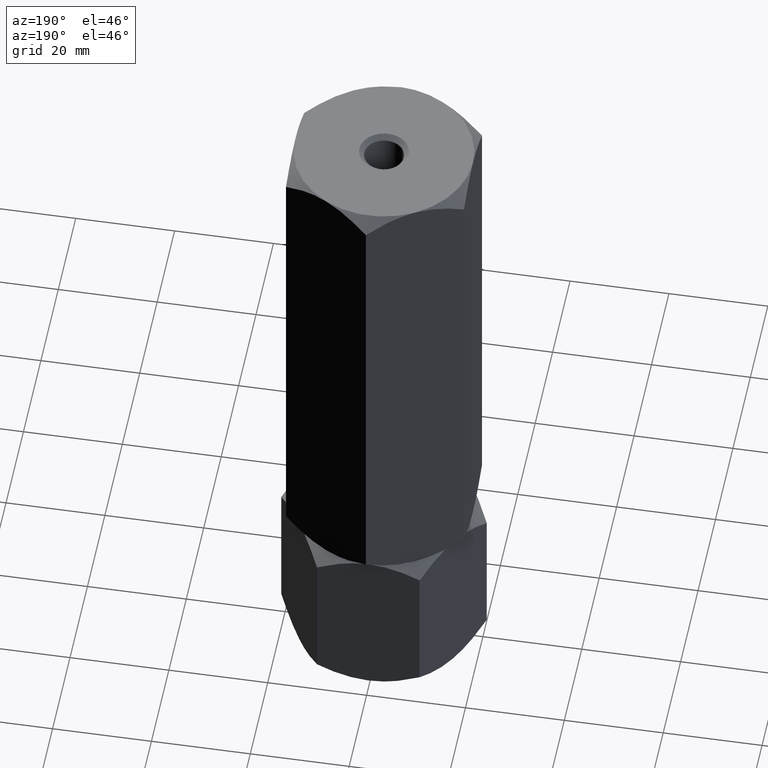
[diagram: clean part render]
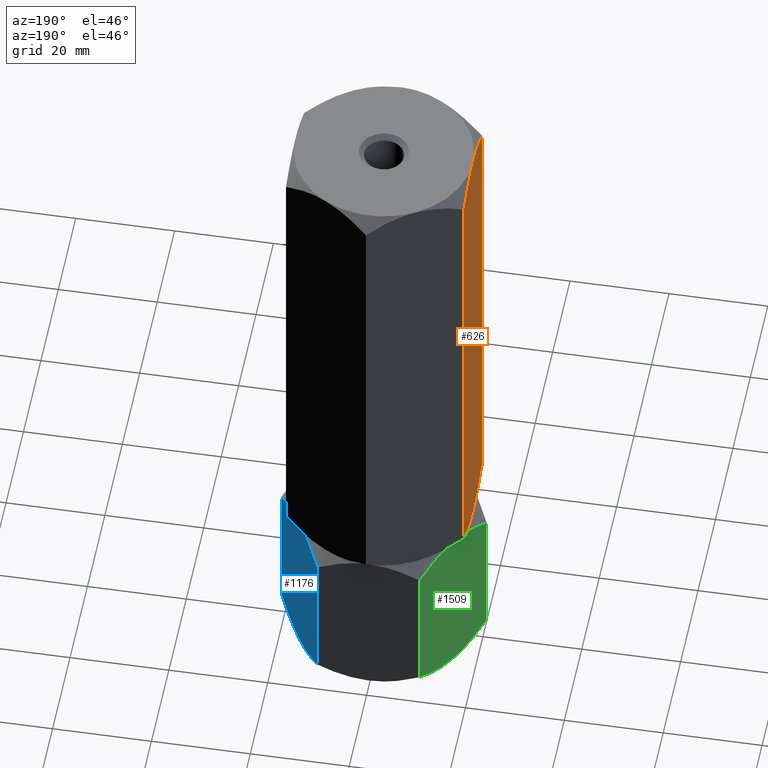
[diagram: same view with three faces highlighted in distinct colors, each labeled with its STEP entity id]
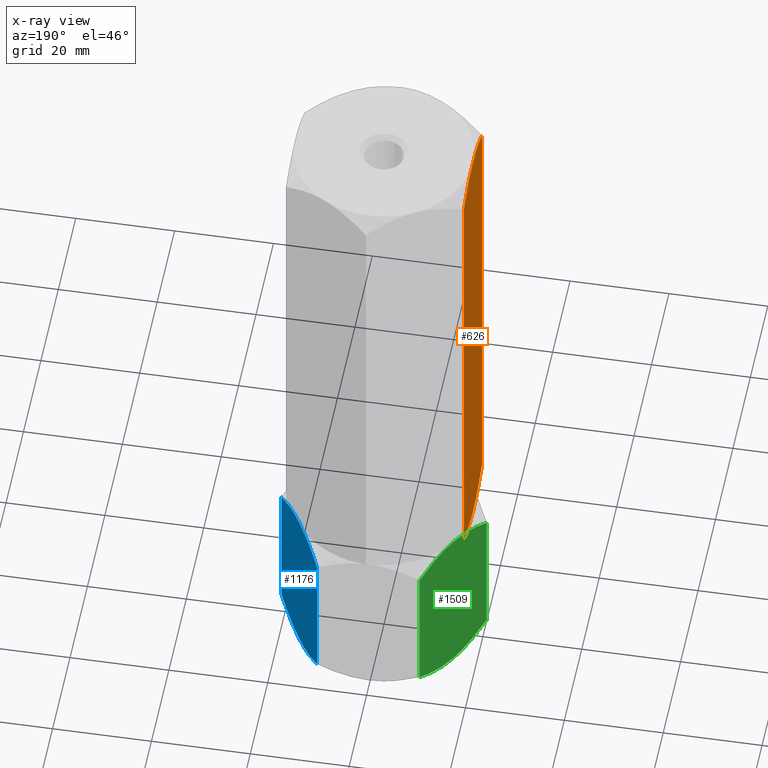
[diagram: x-ray of the same camera — body ghosted, the three highlighted faces saturated]
A machine part, auxiliary view with three faces highlighted in distinct colors.
The next image is the same camera in x-ray (body ghosted, the three faces saturated) — at least one of them is partly hidden behind the body in this view.
Their STEP definitions:

[orange] entity #626 — the highlighted planar face has unit normal (1, 0, -0).
#4 = CARTESIAN_POINT ( 'NONE',  ( -18.00000000000000711, 7.107311090567371537, 132.0542086361348879 ) ) ;
#8 = CARTESIAN_POINT ( 'NONE',  ( -18.00000000000000355, -8.769604937885725704, 131.3255090817757207 ) ) ;
#62 = ORIENTED_EDGE ( 'NONE', *, *, #1614, .F. ) ;
#83 = VERTEX_POINT ( 'NONE', #871 ) ;
#87 = B_SPLINE_CURVE_WITH_KNOTS ( 'NONE', 3,
 ( #177, #354, #4, #811, #1611, #311, #1748, #1297 ),
 .UNSPECIFIED., .F., .F.,
 ( 4, 2, 2, 4 ),
 ( 0.1278099879825815854, 0.1331388918532575572, 0.1358033437885955708, 0.1384677957239335566 ),
 .UNSPECIFIED. ) ;
#90 = EDGE_CURVE ( 'NONE', #1162, #1548, #1300, .T. ) ;
#128 = VERTEX_POINT ( 'NONE', #672 ) ;
#154 = VERTEX_POINT ( 'NONE', #537 ) ;
#173 = CARTESIAN_POINT ( 'NONE',  ( -18.00000000000000355, -7.507490410494521704, 131.8342518833695181 ) ) ;
#177 = CARTESIAN_POINT ( 'NONE',  ( -18.00000000000000355, 10.39230484541327293, 130.5487236425067863 ) ) ;
#182 = CARTESIAN_POINT ( 'NONE',  ( -18.00000000000000355, -9.589039146339997544, 130.9503564920434258 ) ) ;
#205 = CARTESIAN_POINT ( 'NONE',  ( -18.00000000000000711, -0.4513223419669447067, 33.33333333333329307 ) ) ;
#211 = CARTESIAN_POINT ( 'NONE',  ( -18.00000000000000711, -0.9043953770119721458, 33.35033129737433910 ) ) ;
#223 = CARTESIAN_POINT ( 'NONE',  ( -18.00000000000000711, -7.082707117959917476, 34.66128091149798252 ) ) ;
#229 = ORIENTED_EDGE ( 'NONE', *, *, #1102, .F. ) ;
#256 = VERTEX_POINT ( 'NONE', #1046 ) ;
#292 = EDGE_CURVE ( 'NONE', #1548, #128, #983, .T. ) ;
#301 = FACE_OUTER_BOUND ( 'NONE', #1556, .T. ) ;
#311 = CARTESIAN_POINT ( 'NONE',  ( -18.00000000000000711, 1.805664286422173692, 133.2645055555531428 ) ) ;
#320 = CARTESIAN_POINT ( 'NONE',  ( -18.00000000000000355, -10.39230484541325872, 36.11794302415981406 ) ) ;
#339 = CARTESIAN_POINT ( 'NONE',  ( -18.00000000000000000, -1.817661187389374655, 133.2474680458177829 ) ) ;
#348 = CARTESIAN_POINT ( 'NONE',  ( -18.00000000000000355, -0.9087126234396247781, 133.3161085293293411 ) ) ;
#353 = AXIS2_PLACEMENT_3D ( 'NONE', #1236, #929, #941 ) ;
#354 = CARTESIAN_POINT ( 'NONE',  ( -18.00000000000000711, 8.774731520318134415, 131.3575103050543760 ) ) ;
#360 = CARTESIAN_POINT ( 'NONE',  ( -18.00000000000000355, -3.613967831719413937, 33.67110738872835185 ) ) ;
#368 = CARTESIAN_POINT ( 'NONE',  ( -18.00000000000000711, -2.268365306453394847, 33.47027849005760913 ) ) ;
#432 = LINE ( 'NONE', #900, #1707 ) ;
#439 = PLANE ( 'NONE',  #353 ) ;
#480 = DIRECTION ( 'NONE',  ( -0.000000000000000000, -0.000000000000000000, -1.000000000000000000 ) ) ;
#503 = CARTESIAN_POINT ( 'NONE',  ( -18.00000000000000355, -4.489815314339048236, 132.8005018324903119 ) ) ;
#534 = ORIENTED_EDGE ( 'NONE', *, *, #292, .F. ) ;
#537 = CARTESIAN_POINT ( 'NONE',  ( -18.00000000000000355, 10.39230484541327293, 130.5487236425067863 ) ) ;
#626 = ADVANCED_FACE ( 'NONE', ( #301 ), #439, .F. ) ;
#633 = CARTESIAN_POINT ( 'NONE',  ( -18.00000000000000000, 0.000000000000000000, 133.3333333333333144 ) ) ;
#639 = CARTESIAN_POINT ( 'NONE',  ( -18.00000000000000355, 0.000000000000000000, 33.33333333333330017 ) ) ;
#672 = CARTESIAN_POINT ( 'NONE',  ( -18.00000000000000355, 10.39230484541327293, 36.11794302415982116 ) ) ;
#681 = CARTESIAN_POINT ( 'NONE',  ( -18.00000000000000000, -8.765915541430075564, 35.35100532987971889 ) ) ;
#693 = CARTESIAN_POINT ( 'NONE',  ( -18.00000000000000355, -10.39230484541325872, 36.11794302415981406 ) ) ;
#811 = CARTESIAN_POINT ( 'NONE',  ( -18.00000000000000355, 4.475081985729232770, 132.8044625281006006 ) ) ;
#815 = CARTESIAN_POINT ( 'NONE',  ( -18.00000000000000355, 10.39230484541327293, 36.11794302415982116 ) ) ;
#838 = CARTESIAN_POINT ( 'NONE',  ( -18.00000000000000355, 0.000000000000000000, 33.33333333333330017 ) ) ;
#862 = CARTESIAN_POINT ( 'NONE',  ( -18.00000000000000355, -8.347141026087349758, 35.17082227915909698 ) ) ;
#871 = CARTESIAN_POINT ( 'NONE',  ( -18.00000000000000000, 0.000000000000000000, 133.3333333333333144 ) ) ;
#900 = CARTESIAN_POINT ( 'NONE',  ( -18.00000000000000355, -10.39230484541325872, 133.3333333333333144 ) ) ;
#929 = DIRECTION ( 'NONE',  ( 1.000000000000000000, 0.000000000000000000, -0.000000000000000000 ) ) ;
#941 = DIRECTION ( 'NONE',  ( -0.000000000000000000, 0.000000000000000000, -1.000000000000000000 ) ) ;
#954 = CARTESIAN_POINT ( 'NONE',  ( -18.00000000000000355, 1.810443484980108986, 33.33333333333329307 ) ) ;
#966 = CARTESIAN_POINT ( 'NONE',  ( -18.00000000000000355, 0.000000000000000000, 33.33333333333330017 ) ) ;
#983 = B_SPLINE_CURVE_WITH_KNOTS ( 'NONE', 3,
 ( #966, #954, #1606, #1759, #1597, #815 ),
 .UNSPECIFIED., .F., .F.,
 ( 4, 2, 4 ),
 ( 0.1107820986329206697, 0.1159835759449454468, 0.1211850532569702238 ),
 .UNSPECIFIED. ) ;
#990 = CARTESIAN_POINT ( 'NONE',  ( -18.00000000000000711, -6.223496946123841411, 132.2920538615294390 ) ) ;
#1017 = CARTESIAN_POINT ( 'NONE',  ( -18.00000000000000355, -1.814095138421053077, 33.41883099885364317 ) ) ;
#1046 = CARTESIAN_POINT ( 'NONE',  ( -18.00000000000000711, -10.39230484541325694, 130.5487236425067863 ) ) ;
#1102 = EDGE_CURVE ( 'NONE', #83, #256, #1988, .T. ) ;
#1135 = EDGE_CURVE ( 'NONE', #154, #128, #1919, .T. ) ;
#1162 = VERTEX_POINT ( 'NONE', #320 ) ;
#1230 = DIRECTION ( 'NONE',  ( -0.000000000000000000, -0.000000000000000000, -1.000000000000000000 ) ) ;
#1236 = CARTESIAN_POINT ( 'NONE',  ( -18.00000000000000355, 10.39230484541327293, 133.3333333333333144 ) ) ;
#1270 = EDGE_CURVE ( 'NONE', #256, #1162, #432, .T. ) ;
#1274 = CARTESIAN_POINT ( 'NONE',  ( -18.00000000000001066, -3.609709903701545208, 132.9962641319732768 ) ) ;
#1297 = CARTESIAN_POINT ( 'NONE',  ( -18.00000000000000000, 0.000000000000000000, 133.3333333333333144 ) ) ;
#1300 = B_SPLINE_CURVE_WITH_KNOTS ( 'NONE', 3,
 ( #693, #1790, #1490, #681, #862, #223, #1511, #1966, #360, #368, #1017, #211, #205, #838 ),
 .UNSPECIFIED., .F., .F.,
 ( 4, 2, 2, 2, 2, 2, 4 ),
 ( 0.1004087599824664279, 0.1017054273137732029, 0.1030020946450799918, 0.1055954293076935557, 0.1081887639703071058, 0.1094854313016138947, 0.1107820986329206697 ),
 .UNSPECIFIED. ) ;
#1402 = ORIENTED_EDGE ( 'NONE', *, *, #1135, .T. ) ;
#1465 = ORIENTED_EDGE ( 'NONE', *, *, #90, .F. ) ;
#1490 = CARTESIAN_POINT ( 'NONE',  ( -18.00000000000000711, -9.587949197936595169, 35.72437761027130421 ) ) ;
#1511 = CARTESIAN_POINT ( 'NONE',  ( -18.00000000000000355, -6.228990999673021278, 34.36251136990549782 ) ) ;
#1548 = VERTEX_POINT ( 'NONE', #639 ) ;
#1556 = EDGE_LOOP ( 'NONE', ( #62, #1402, #534, #1465, #1724, #229 ) ) ;
#1597 = CARTESIAN_POINT ( 'NONE',  ( -18.00000000000000355, 8.778074610959544444, 35.31082790693295692 ) ) ;
#1600 = CARTESIAN_POINT ( 'NONE',  ( -18.00000000000000711, -2.268326247884222990, 133.1963592391387579 ) ) ;
#1606 = CARTESIAN_POINT ( 'NONE',  ( -18.00000000000000711, 3.592318780390954647, 33.61070979931490399 ) ) ;
#1608 = CARTESIAN_POINT ( 'NONE',  ( -18.00000000000000355, -0.4526418623711488953, 133.3333333333333144 ) ) ;
#1611 = CARTESIAN_POINT ( 'NONE',  ( -18.00000000000000711, 3.589319173232453863, 133.0001577798414019 ) ) ;
#1614 = EDGE_CURVE ( 'NONE', #154, #83, #87, .T. ) ;
#1707 = VECTOR ( 'NONE', #1230, 1000.000000000000000 ) ;
#1724 = ORIENTED_EDGE ( 'NONE', *, *, #1270, .F. ) ;
#1748 = CARTESIAN_POINT ( 'NONE',  ( -18.00000000000001066, 0.9067060642462314579, 133.3333333333333428 ) ) ;
#1752 = CARTESIAN_POINT ( 'NONE',  ( -17.99999999999999645, -7.080606646322093134, 131.9949414621132746 ) ) ;
#1759 = CARTESIAN_POINT ( 'NONE',  ( -18.00000000000000000, 7.109965447143206774, 34.61309850096016305 ) ) ;
#1771 = CARTESIAN_POINT ( 'NONE',  ( -18.00000000000000711, -5.792286176018565769, 132.4289044973347131 ) ) ;
#1790 = CARTESIAN_POINT ( 'NONE',  ( -18.00000000000000355, -9.992749120313195732, 35.91816516160979234 ) ) ;
#1835 = VECTOR ( 'NONE', #480, 1000.000000000000000 ) ;
#1893 = CARTESIAN_POINT ( 'NONE',  ( -18.00000000000000355, 10.39230484541327293, 133.3333333333333144 ) ) ;
#1904 = CARTESIAN_POINT ( 'NONE',  ( -18.00000000000000711, -10.39230484541325694, 130.5487236425067863 ) ) ;
#1919 = LINE ( 'NONE', #1893, #1835 ) ;
#1966 = CARTESIAN_POINT ( 'NONE',  ( -18.00000000000000711, -4.494632227792643597, 33.86738326141610855 ) ) ;
#1988 = B_SPLINE_CURVE_WITH_KNOTS ( 'NONE', 3,
 ( #633, #1608, #348, #339, #1600, #1274, #503, #1771, #990, #1752, #173, #8, #182, #1904 ),
 .UNSPECIFIED., .F., .F.,
 ( 4, 2, 2, 2, 2, 2, 4 ),
 ( 0.1384677957239335566, 0.1397979318438594964, 0.1411280679637854085, 0.1437883402036372604, 0.1451184763235632003, 0.1464486124434891123, 0.1491088846833409920 ),
 .UNSPECIFIED. ) ;

[blue] entity #1176 — the highlighted planar face has unit normal (-0.866, -0.5, 0).
#1 = ORIENTED_EDGE ( 'NONE', *, *, #316, .F. ) ;
#29 = CARTESIAN_POINT ( 'NONE',  ( 19.13650452186755757, 2.854601888853812497, 32.05595025544343457 ) ) ;
#39 = ORIENTED_EDGE ( 'NONE', *, *, #344, .F. ) ;
#76 = CARTESIAN_POINT ( 'NONE',  ( 20.78460969082652809, 2.339913672068599110E-16, 30.54872364250677919 ) ) ;
#82 = CARTESIAN_POINT ( 'NONE',  ( 17.38072716576608556, 5.895697476400523662, 0.2763959071215847385 ) ) ;
#151 = CARTESIAN_POINT ( 'NONE',  ( 17.40248616759157585, 5.858009779716803145, 32.99277023107802620 ) ) ;
#180 = LINE ( 'NONE', #1409, #654 ) ;
#203 = ORIENTED_EDGE ( 'NONE', *, *, #767, .T. ) ;
#206 = DIRECTION ( 'NONE',  ( 0.5000000000000002220, -0.8660254037844384856, 0.000000000000000000 ) ) ;
#304 = CARTESIAN_POINT ( 'NONE',  ( 11.20619321075668040, 16.59030399953601531, 31.36261200785025238 ) ) ;
#316 = EDGE_CURVE ( 'NONE', #395, #1620, #883, .T. ) ;
#328 = CARTESIAN_POINT ( 'NONE',  ( 12.04393988858690001, 15.13928418966203360, 32.06075863182906005 ) ) ;
#344 = EDGE_CURVE ( 'NONE', #960, #1472, #180, .T. ) ;
#346 = CARTESIAN_POINT ( 'NONE',  ( 15.58845726811989252, 9.000000000000003553, 33.33333333333330017 ) ) ;
#378 = EDGE_CURVE ( 'NONE', #1620, #960, #1692, .T. ) ;
#380 = CARTESIAN_POINT ( 'NONE',  ( 20.78460969082652809, 0.000000000000000000, 33.33333333333330017 ) ) ;
#395 = VERTEX_POINT ( 'NONE', #76 ) ;
#412 = LINE ( 'NONE', #380, #457 ) ;
#457 = VECTOR ( 'NONE', #540, 1000.000000000000000 ) ;
#459 = CARTESIAN_POINT ( 'NONE',  ( 15.36090870263096519, 9.394125676616235765, 7.538593230563273018E-17 ) ) ;
#491 = B_SPLINE_CURVE_WITH_KNOTS ( 'NONE', 3,
 ( #1041, #1954, #82, #857, #1486, #1157 ),
 .UNSPECIFIED., .F., .F.,
 ( 4, 2, 4 ),
 ( 0.01077282027732746547, 0.01612137750481873466, 0.02146993473231000038 ),
 .UNSPECIFIED. ) ;
#540 = DIRECTION ( 'NONE',  ( -0.000000000000000000, -0.000000000000000000, -1.000000000000000000 ) ) ;
#585 = CARTESIAN_POINT ( 'NONE',  ( 15.58845726811989252, 9.000000000000003553, 0.000000000000000000 ) ) ;
#642 = CARTESIAN_POINT ( 'NONE',  ( 15.81600583360881807, 8.605874323383773117, 33.33333333333331439 ) ) ;
#654 = VECTOR ( 'NONE', #1111, 1000.000000000000000 ) ;
#696 = CARTESIAN_POINT ( 'NONE',  ( 13.77442836864821274, 12.14199022028320130, 0.3405631022552679243 ) ) ;
#698 = ORIENTED_EDGE ( 'NONE', *, *, #915, .F. ) ;
#767 = EDGE_CURVE ( 'NONE', #395, #1605, #412, .T. ) ;
#780 = CARTESIAN_POINT ( 'NONE',  ( 14.67378923359657605, 10.58425150785354774, 0.08694689011815222301 ) ) ;
#806 = CARTESIAN_POINT ( 'NONE',  ( 17.84166640377631197, 5.097327296964722976, 32.79624777750427000 ) ) ;
#827 = ORIENTED_EDGE ( 'NONE', *, *, #1699, .F. ) ;
#854 = CARTESIAN_POINT ( 'NONE',  ( 12.04041001437222214, 15.14539811114618928, 1.277383077889868046 ) ) ;
#857 = CARTESIAN_POINT ( 'NONE',  ( 19.13297464765287614, 2.860715810337965070, 1.272574701504243233 ) ) ;
#883 = B_SPLINE_CURVE_WITH_KNOTS ( 'NONE', 3,
 ( #1140, #1565, #29, #806, #151, #2041, #1443, #1916, #642, #346 ),
 .UNSPECIFIED., .F., .F.,
 ( 4, 2, 2, 2, 4 ),
 ( 2.544307986817553445E-07, 0.005386537354063076002, 0.008079678815695273339, 0.009426249546511373742, 0.01077282027732747588 ),
 .UNSPECIFIED. ) ;
#909 = CARTESIAN_POINT ( 'NONE',  ( 10.39230484541325872, 18.00000000000000000, 2.784609690826514328 ) ) ;
#915 = EDGE_CURVE ( 'NONE', #1472, #1446, #1079, .T. ) ;
#945 = CARTESIAN_POINT ( 'NONE',  ( 10.39230484541325872, 18.00000000000000000, 30.54872364250678274 ) ) ;
#960 = VERTEX_POINT ( 'NONE', #1393 ) ;
#962 = CARTESIAN_POINT ( 'NONE',  ( 15.58845726811989252, 9.000000000000003553, 33.33333333333330017 ) ) ;
#1041 = CARTESIAN_POINT ( 'NONE',  ( 15.58845726811989252, 9.000000000000003553, 0.000000000000000000 ) ) ;
#1076 = ORIENTED_EDGE ( 'NONE', *, *, #378, .F. ) ;
#1079 = B_SPLINE_CURVE_WITH_KNOTS ( 'NONE', 3,
 ( #1640, #1990, #854, #1485, #696, #1380, #780, #1223, #459, #1872 ),
 .UNSPECIFIED., .F., .F.,
 ( 4, 2, 2, 2, 4 ),
 ( 2.544307986804616605E-07, 0.005386537354063074268, 0.008079678815695271604, 0.009426249546511368538, 0.01077282027732746547 ),
 .UNSPECIFIED. ) ;
#1104 = CARTESIAN_POINT ( 'NONE',  ( 15.58845726811989252, 9.000000000000003553, 33.33333333333330017 ) ) ;
#1111 = DIRECTION ( 'NONE',  ( -0.000000000000000000, -0.000000000000000000, -1.000000000000000000 ) ) ;
#1140 = CARTESIAN_POINT ( 'NONE',  ( 20.78460969082652809, 2.339913672068599110E-16, 30.54872364250677919 ) ) ;
#1149 = AXIS2_PLACEMENT_3D ( 'NONE', #1474, #1979, #206 ) ;
#1157 = CARTESIAN_POINT ( 'NONE',  ( 20.78460969082652809, -4.404509159444062513E-16, 2.784609690826518769 ) ) ;
#1176 = ADVANCED_FACE ( 'NONE', ( #1314 ), #1819, .F. ) ;
#1223 = CARTESIAN_POINT ( 'NONE',  ( 15.13208409062669091, 9.790461530629878339, 0.01733285647408732560 ) ) ;
#1314 = FACE_OUTER_BOUND ( 'NONE', #1742, .T. ) ;
#1380 = CARTESIAN_POINT ( 'NONE',  ( 14.44719758599053350, 10.97671975407795486, 0.1387225990985758162 ) ) ;
#1393 = CARTESIAN_POINT ( 'NONE',  ( 10.39230484541325872, 18.00000000000000000, 30.54872364250678274 ) ) ;
#1409 = CARTESIAN_POINT ( 'NONE',  ( 10.39230484541325872, 18.00000000000000000, 33.33333333333330017 ) ) ;
#1443 = CARTESIAN_POINT ( 'NONE',  ( 16.50312530264320188, 7.415748492146455817, 33.24638644321513681 ) ) ;
#1446 = VERTEX_POINT ( 'NONE', #585 ) ;
#1472 = VERTEX_POINT ( 'NONE', #909 ) ;
#1474 = CARTESIAN_POINT ( 'NONE',  ( 20.78460969082652809, 0.000000000000000000, 33.33333333333330017 ) ) ;
#1485 = CARTESIAN_POINT ( 'NONE',  ( 13.33524813246346596, 12.90267270303527880, 0.5370855558290084097 ) ) ;
#1486 = CARTESIAN_POINT ( 'NONE',  ( 19.97072132548310108, 1.409696000463987353, 1.970721325483051123 ) ) ;
#1565 = CARTESIAN_POINT ( 'NONE',  ( 19.96977770663490048, 1.411330396252048258, 31.36355562669839614 ) ) ;
#1605 = VERTEX_POINT ( 'NONE', #1931 ) ;
#1620 = VERTEX_POINT ( 'NONE', #962 ) ;
#1640 = CARTESIAN_POINT ( 'NONE',  ( 10.39230484541325872, 18.00000000000000000, 2.784609690826514328 ) ) ;
#1692 = B_SPLINE_CURVE_WITH_KNOTS ( 'NONE', 3,
 ( #1104, #1925, #1734, #328, #304, #945 ),
 .UNSPECIFIED., .F., .F.,
 ( 4, 2, 4 ),
 ( 0.01077282027732747588, 0.01612137750481873813, 0.02146993473231000038 ),
 .UNSPECIFIED. ) ;
#1699 = EDGE_CURVE ( 'NONE', #1446, #1605, #491, .T. ) ;
#1734 = CARTESIAN_POINT ( 'NONE',  ( 13.79618737047369947, 12.10430252359948256, 33.05693742621171083 ) ) ;
#1742 = EDGE_LOOP ( 'NONE', ( #1, #203, #827, #698, #39, #1076 ) ) ;
#1819 = PLANE ( 'NONE',  #1149 ) ;
#1872 = CARTESIAN_POINT ( 'NONE',  ( 15.58845726811989252, 9.000000000000003553, 0.000000000000000000 ) ) ;
#1916 = CARTESIAN_POINT ( 'NONE',  ( 16.04483044561309057, 8.209538469370126990, 33.31600047685920885 ) ) ;
#1925 = CARTESIAN_POINT ( 'NONE',  ( 14.68463803553234470, 10.56546083169953754, 33.33333333333330017 ) ) ;
#1931 = CARTESIAN_POINT ( 'NONE',  ( 20.78460969082652809, -4.404509159444062513E-16, 2.784609690826518769 ) ) ;
#1954 = CARTESIAN_POINT ( 'NONE',  ( 16.49227650070743678, 7.434539168300463352, -2.134523027080836115E-16 ) ) ;
#1979 = DIRECTION ( 'NONE',  ( -0.8660254037844385966, -0.5000000000000003331, 0.000000000000000000 ) ) ;
#1990 = CARTESIAN_POINT ( 'NONE',  ( 11.20713682960488100, 16.58866960374795951, 1.969777706634898484 ) ) ;
#2041 = CARTESIAN_POINT ( 'NONE',  ( 16.72971695024923733, 7.023280245922047804, 33.19461073423471476 ) ) ;

[green] entity #1509 — the highlighted planar face has unit normal (0.866, -0.5, 0).
#7 = CARTESIAN_POINT ( 'NONE',  ( -12.04393988858690712, 15.13928418966203004, 1.272574701504243677 ) ) ;
#22 = B_SPLINE_CURVE_WITH_KNOTS ( 'NONE', 3,
 ( #898, #149, #755, #920, #1552, #261, #1261, #270, #130, #1730 ),
 .UNSPECIFIED., .F., .F.,
 ( 4, 2, 2, 2, 4 ),
 ( 2.544307986798773666E-07, 0.005386537354063075135, 0.008079678815695271604, 0.009426249546511372007, 0.01077282027732746894 ),
 .UNSPECIFIED. ) ;
#41 = EDGE_CURVE ( 'NONE', #1861, #1462, #213, .T. ) ;
#45 = LINE ( 'NONE', #499, #488 ) ;
#48 = CARTESIAN_POINT ( 'NONE',  ( -15.58845726811989607, 8.999999999999996447, 33.33333333333330017 ) ) ;
#60 = CARTESIAN_POINT ( 'NONE',  ( -10.39230484541326582, 18.00000000000000000, 33.33333333333330017 ) ) ;
#61 = CARTESIAN_POINT ( 'NONE',  ( -13.77442836864821984, 12.14199022028319597, 32.99277023107802620 ) ) ;
#78 = EDGE_CURVE ( 'NONE', #715, #1462, #1637, .T. ) ;
#106 = CARTESIAN_POINT ( 'NONE',  ( -10.39230484541326582, 18.00000000000000000, 33.33333333333330017 ) ) ;
#117 = DIRECTION ( 'NONE',  ( 0.4999999999999998335, 0.8660254037844387076, 0.000000000000000000 ) ) ;
#130 = CARTESIAN_POINT ( 'NONE',  ( -15.81600583360882162, 8.605874323383764235, 9.073605160531897768E-16 ) ) ;
#140 = CARTESIAN_POINT ( 'NONE',  ( -15.58845726811989607, 8.999999999999996447, 33.33333333333330017 ) ) ;
#144 = ORIENTED_EDGE ( 'NONE', *, *, #1497, .F. ) ;
#149 = CARTESIAN_POINT ( 'NONE',  ( -19.96977770663490759, 1.411330396252044483, 1.969777706634901815 ) ) ;
#209 = CARTESIAN_POINT ( 'NONE',  ( -15.58845726811989607, 8.999999999999996447, 33.33333333333330017 ) ) ;
#213 = B_SPLINE_CURVE_WITH_KNOTS ( 'NONE', 3,
 ( #665, #1425, #988, #7, #479, #1291 ),
 .UNSPECIFIED., .F., .F.,
 ( 4, 2, 4 ),
 ( 0.01077282027732746894, 0.01612137750481873466, 0.02146993473231000038 ),
 .UNSPECIFIED. ) ;
#261 = CARTESIAN_POINT ( 'NONE',  ( -16.72971695024925154, 7.023280245922045140, 0.1387225990985769819 ) ) ;
#270 = CARTESIAN_POINT ( 'NONE',  ( -16.04483044561310479, 8.209538469370125213, 0.01733285647408998667 ) ) ;
#302 = CARTESIAN_POINT ( 'NONE',  ( -17.38072716576608912, 5.895697476400517445, 33.05693742621171083 ) ) ;
#366 = B_SPLINE_CURVE_WITH_KNOTS ( 'NONE', 3,
 ( #713, #1951, #1325, #546, #61, #682, #1791, #1828, #389, #48 ),
 .UNSPECIFIED., .F., .F.,
 ( 4, 2, 2, 2, 4 ),
 ( 2.544307986796311447E-07, 0.005386537354063075135, 0.008079678815695275074, 0.009426249546511373742, 0.01077282027732747241 ),
 .UNSPECIFIED. ) ;
#383 = AXIS2_PLACEMENT_3D ( 'NONE', #106, #629, #117 ) ;
#389 = CARTESIAN_POINT ( 'NONE',  ( -15.36090870263097230, 9.394125676616230436, 33.33333333333330728 ) ) ;
#390 = B_SPLINE_CURVE_WITH_KNOTS ( 'NONE', 3,
 ( #140, #1539, #302, #1217, #766, #1250 ),
 .UNSPECIFIED., .F., .F.,
 ( 4, 2, 4 ),
 ( 0.01077282027732747241, 0.01612137750481874160, 0.02146993473231000732 ),
 .UNSPECIFIED. ) ;
#436 = CARTESIAN_POINT ( 'NONE',  ( -20.78460969082652809, -3.746502714695151746E-15, 30.54872364250677919 ) ) ;
#479 = CARTESIAN_POINT ( 'NONE',  ( -11.20619321075668573, 16.59030399953601886, 1.970721325483050235 ) ) ;
#488 = VECTOR ( 'NONE', #1138, 1000.000000000000000 ) ;
#499 = CARTESIAN_POINT ( 'NONE',  ( -20.78460969082652809, -3.512511347539742526E-15, 33.33333333333330017 ) ) ;
#517 = ORIENTED_EDGE ( 'NONE', *, *, #78, .T. ) ;
#546 = CARTESIAN_POINT ( 'NONE',  ( -13.33524813246347307, 12.90267270303527170, 32.79624777750428422 ) ) ;
#567 = ORIENTED_EDGE ( 'NONE', *, *, #1464, .F. ) ;
#625 = VERTEX_POINT ( 'NONE', #2051 ) ;
#629 = DIRECTION ( 'NONE',  ( 0.8660254037844387076, -0.4999999999999998335, 0.000000000000000000 ) ) ;
#665 = CARTESIAN_POINT ( 'NONE',  ( -15.58845726811989607, 8.999999999999996447, 0.000000000000000000 ) ) ;
#682 = CARTESIAN_POINT ( 'NONE',  ( -14.44719758599054238, 10.97671975407794953, 33.19461073423472186 ) ) ;
#713 = CARTESIAN_POINT ( 'NONE',  ( -10.39230484541326582, 18.00000000000000000, 30.54872364250677919 ) ) ;
#715 = VERTEX_POINT ( 'NONE', #961 ) ;
#755 = CARTESIAN_POINT ( 'NONE',  ( -19.13650452186756823, 2.854601888853808056, 1.277383077889870266 ) ) ;
#766 = CARTESIAN_POINT ( 'NONE',  ( -19.97072132548310819, 1.409696000463982024, 31.36261200785025238 ) ) ;
#772 = CARTESIAN_POINT ( 'NONE',  ( -15.58845726811989607, 8.999999999999996447, 0.000000000000000000 ) ) ;
#784 = FACE_OUTER_BOUND ( 'NONE', #1633, .T. ) ;
#898 = CARTESIAN_POINT ( 'NONE',  ( -20.78460969082652809, -3.746502714695151746E-15, 2.784609690826518325 ) ) ;
#907 = ORIENTED_EDGE ( 'NONE', *, *, #41, .F. ) ;
#920 = CARTESIAN_POINT ( 'NONE',  ( -17.84166640377631907, 5.097327296964719423, 0.5370855558290095200 ) ) ;
#961 = CARTESIAN_POINT ( 'NONE',  ( -10.39230484541326582, 18.00000000000000000, 30.54872364250677919 ) ) ;
#981 = VERTEX_POINT ( 'NONE', #436 ) ;
#988 = CARTESIAN_POINT ( 'NONE',  ( -13.79618737047370480, 12.10430252359947900, 0.2763959071215847385 ) ) ;
#1138 = DIRECTION ( 'NONE',  ( -0.000000000000000000, -0.000000000000000000, -1.000000000000000000 ) ) ;
#1168 = DIRECTION ( 'NONE',  ( -0.000000000000000000, -0.000000000000000000, -1.000000000000000000 ) ) ;
#1193 = EDGE_CURVE ( 'NONE', #715, #1678, #366, .T. ) ;
#1217 = CARTESIAN_POINT ( 'NONE',  ( -19.13297464765287614, 2.860715810337961518, 32.06075863182904584 ) ) ;
#1249 = VECTOR ( 'NONE', #1168, 1000.000000000000000 ) ;
#1250 = CARTESIAN_POINT ( 'NONE',  ( -20.78460969082652809, -3.746502714695151746E-15, 30.54872364250677919 ) ) ;
#1261 = CARTESIAN_POINT ( 'NONE',  ( -16.50312530264320543, 7.415748492146450488, 0.08694689011815480428 ) ) ;
#1291 = CARTESIAN_POINT ( 'NONE',  ( -10.39230484541326582, 18.00000000000000000, 2.784609690826517436 ) ) ;
#1325 = CARTESIAN_POINT ( 'NONE',  ( -12.04041001437222924, 15.14539811114618928, 32.05595025544343457 ) ) ;
#1359 = ORIENTED_EDGE ( 'NONE', *, *, #1592, .F. ) ;
#1425 = CARTESIAN_POINT ( 'NONE',  ( -14.68463803553235181, 10.56546083169953398, 7.623296525288700093E-16 ) ) ;
#1462 = VERTEX_POINT ( 'NONE', #1703 ) ;
#1464 = EDGE_CURVE ( 'NONE', #625, #1861, #22, .T. ) ;
#1497 = EDGE_CURVE ( 'NONE', #1678, #981, #390, .T. ) ;
#1509 = ADVANCED_FACE ( 'NONE', ( #784 ), #1719, .F. ) ;
#1539 = CARTESIAN_POINT ( 'NONE',  ( -16.49227650070744033, 7.434539168300457135, 33.33333333333330017 ) ) ;
#1552 = CARTESIAN_POINT ( 'NONE',  ( -17.40248616759157230, 5.858009779716798704, 0.3405631022552688125 ) ) ;
#1592 = EDGE_CURVE ( 'NONE', #981, #625, #45, .T. ) ;
#1624 = ORIENTED_EDGE ( 'NONE', *, *, #1193, .F. ) ;
#1633 = EDGE_LOOP ( 'NONE', ( #1624, #517, #907, #567, #1359, #144 ) ) ;
#1637 = LINE ( 'NONE', #60, #1249 ) ;
#1678 = VERTEX_POINT ( 'NONE', #209 ) ;
#1703 = CARTESIAN_POINT ( 'NONE',  ( -10.39230484541326582, 18.00000000000000000, 2.784609690826517436 ) ) ;
#1719 = PLANE ( 'NONE',  #383 ) ;
#1730 = CARTESIAN_POINT ( 'NONE',  ( -15.58845726811989607, 8.999999999999996447, 0.000000000000000000 ) ) ;
#1791 = CARTESIAN_POINT ( 'NONE',  ( -14.67378923359658316, 10.58425150785354241, 33.24638644321514391 ) ) ;
#1828 = CARTESIAN_POINT ( 'NONE',  ( -15.13208409062669801, 9.790461530629871234, 33.31600047685920885 ) ) ;
#1861 = VERTEX_POINT ( 'NONE', #772 ) ;
#1951 = CARTESIAN_POINT ( 'NONE',  ( -11.20713682960488633, 16.58866960374795596, 31.36355562669838903 ) ) ;
#2051 = CARTESIAN_POINT ( 'NONE',  ( -20.78460969082652809, -3.746502714695151746E-15, 2.784609690826518325 ) ) ;